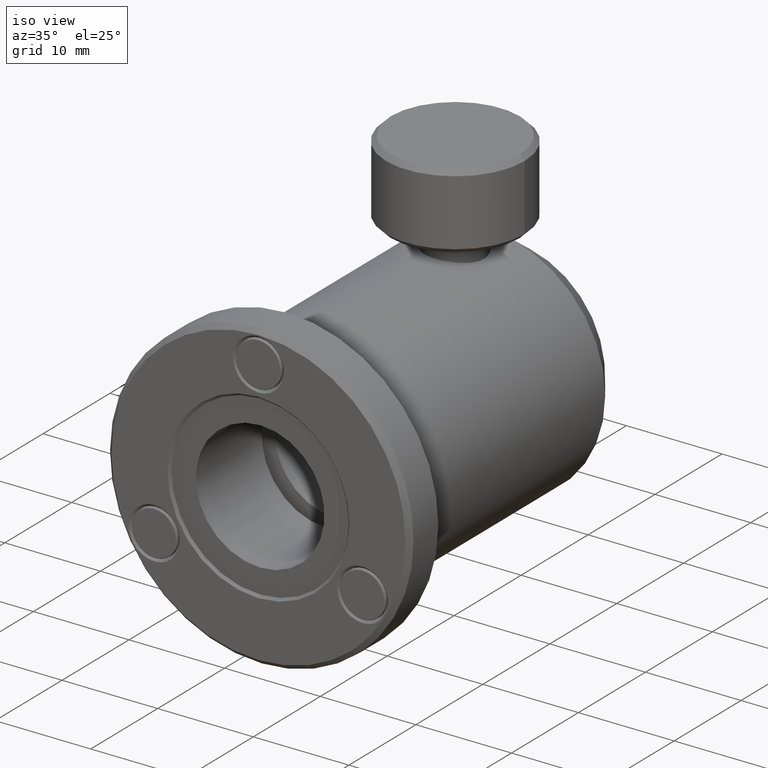
[diagram: clean part render]
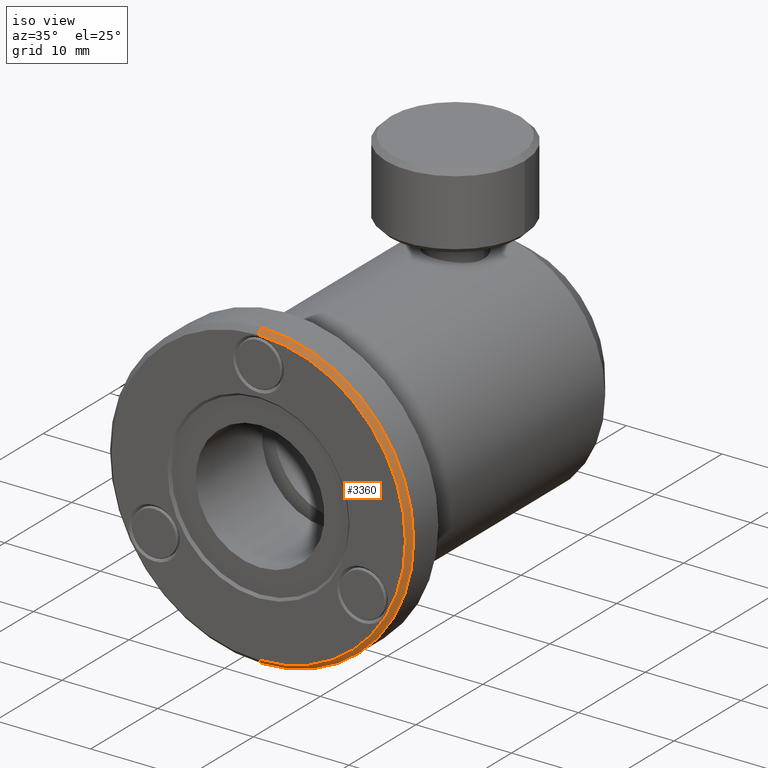
[diagram: same view with one face highlighted and labeled with its STEP entity id]
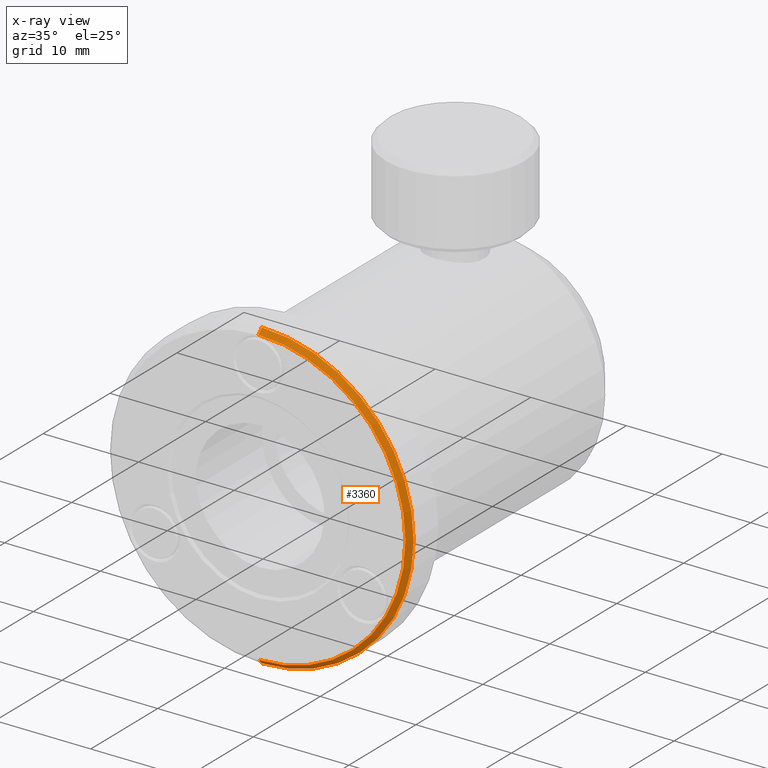
[diagram: x-ray of the same camera — body ghosted, the highlighted face saturated]
A machine part, iso view. The second image highlights one B-rep face of the part: STEP entity #3360.
The next image is the same camera in x-ray: the body ghosted, the highlighted face saturated — about 0% of this face is hidden behind the body in this view.
In plain terms, the highlighted conical surface has half-angle 45 deg.
Its self-contained STEP definition (entity closure, byte-faithful):
#9 = AXIS2_PLACEMENT_3D ( 'NONE', #38, #3332, #3068 ) ;
#14 = CARTESIAN_POINT ( 'NONE',  ( -16.77690416192945100, -19.54783156452665300, 27.21296359904499000 ) ) ;
#18 = VERTEX_POINT ( 'NONE', #2075 ) ;
#38 = CARTESIAN_POINT ( 'NONE',  ( -16.77690416192945100, -19.03983156452665400, 11.84596359904499100 ) ) ;
#386 = CARTESIAN_POINT ( 'NONE',  ( -16.77690416192945100, -19.54783156452665300, 27.21296359904499000 ) ) ;
#429 = AXIS2_PLACEMENT_3D ( 'NONE', #2739, #1386, #2476 ) ;
#441 = EDGE_CURVE ( 'NONE', #1047, #2563, #1442, .T. ) ;
#535 = CARTESIAN_POINT ( 'NONE',  ( -16.77690416192944800, -19.03983156452665400, 27.72096359904498900 ) ) ;
#783 = ORIENTED_EDGE ( 'NONE', *, *, #1567, .F. ) ;
#872 = EDGE_LOOP ( 'NONE', ( #783, #1580, #2996, #1620 ) ) ;
#1047 = VERTEX_POINT ( 'NONE', #386 ) ;
#1063 = CONICAL_SURFACE ( 'NONE', #429, 15.36700000000000100, 0.7853981633974449500 ) ;
#1095 = EDGE_CURVE ( 'NONE', #1676, #18, #2132, .T. ) ;
#1384 = DIRECTION ( 'NONE',  ( -0.0000000000000000000, -1.000000000000000000, -0.0000000000000000000 ) ) ;
#1386 = DIRECTION ( 'NONE',  ( 0.0000000000000000000, 1.000000000000000000, 0.0000000000000000000 ) ) ;
#1397 = DIRECTION ( 'NONE',  ( 0.0000000000000000000, 0.0000000000000000000, -1.000000000000000000 ) ) ;
#1442 = LINE ( 'NONE', #14, #3118 ) ;
#1567 = EDGE_CURVE ( 'NONE', #1676, #1047, #1782, .T. ) ;
#1580 = ORIENTED_EDGE ( 'NONE', *, *, #1095, .T. ) ;
#1620 = ORIENTED_EDGE ( 'NONE', *, *, #441, .F. ) ;
#1676 = VERTEX_POINT ( 'NONE', #2192 ) ;
#1782 = CIRCLE ( 'NONE', #2079, 15.36700000000000100 ) ;
#1819 = FACE_OUTER_BOUND ( 'NONE', #872, .T. ) ;
#1914 = CARTESIAN_POINT ( 'NONE',  ( -16.77690416192945100, -19.54783156452665300, 11.84596359904499100 ) ) ;
#2075 = CARTESIAN_POINT ( 'NONE',  ( -16.77690416192945100, -19.03983156452665400, -4.029036400955006600 ) ) ;
#2079 = AXIS2_PLACEMENT_3D ( 'NONE', #1914, #1384, #1397 ) ;
#2132 = LINE ( 'NONE', #2213, #3414 ) ;
#2192 = CARTESIAN_POINT ( 'NONE',  ( -16.77690416192944800, -19.54783156452665300, -3.521036400955010600 ) ) ;
#2213 = CARTESIAN_POINT ( 'NONE',  ( -16.77690416192944800, -19.54783156452665300, -3.521036400955010600 ) ) ;
#2217 = CIRCLE ( 'NONE', #9, 15.87499999999999600 ) ;
#2253 = DIRECTION ( 'NONE',  ( 8.659560562354903300E-017, 0.7071067811865499000, -0.7071067811865451300 ) ) ;
#2476 = DIRECTION ( 'NONE',  ( 0.0000000000000000000, 0.0000000000000000000, 1.000000000000000000 ) ) ;
#2563 = VERTEX_POINT ( 'NONE', #535 ) ;
#2739 = CARTESIAN_POINT ( 'NONE',  ( -16.77690416192945100, -19.54783156452665300, 11.84596359904499100 ) ) ;
#2893 = EDGE_CURVE ( 'NONE', #18, #2563, #2217, .T. ) ;
#2996 = ORIENTED_EDGE ( 'NONE', *, *, #2893, .T. ) ;
#3068 = DIRECTION ( 'NONE',  ( 0.0000000000000000000, 0.0000000000000000000, -1.000000000000000000 ) ) ;
#3118 = VECTOR ( 'NONE', #3286, 1000.000000000000100 ) ;
#3286 = DIRECTION ( 'NONE',  ( 0.0000000000000000000, 0.7071067811865499000, 0.7071067811865451300 ) ) ;
#3332 = DIRECTION ( 'NONE',  ( -0.0000000000000000000, -1.000000000000000000, -0.0000000000000000000 ) ) ;
#3360 = ADVANCED_FACE ( 'NONE', ( #1819 ), #1063, .T. ) ;
#3414 = VECTOR ( 'NONE', #2253, 1000.000000000000100 ) ;